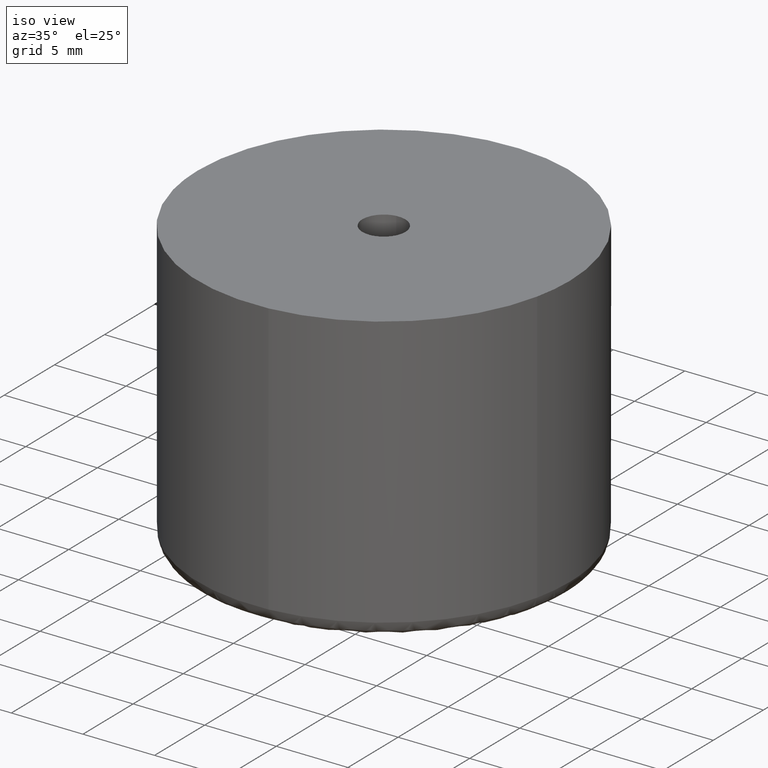
[diagram: clean part render]
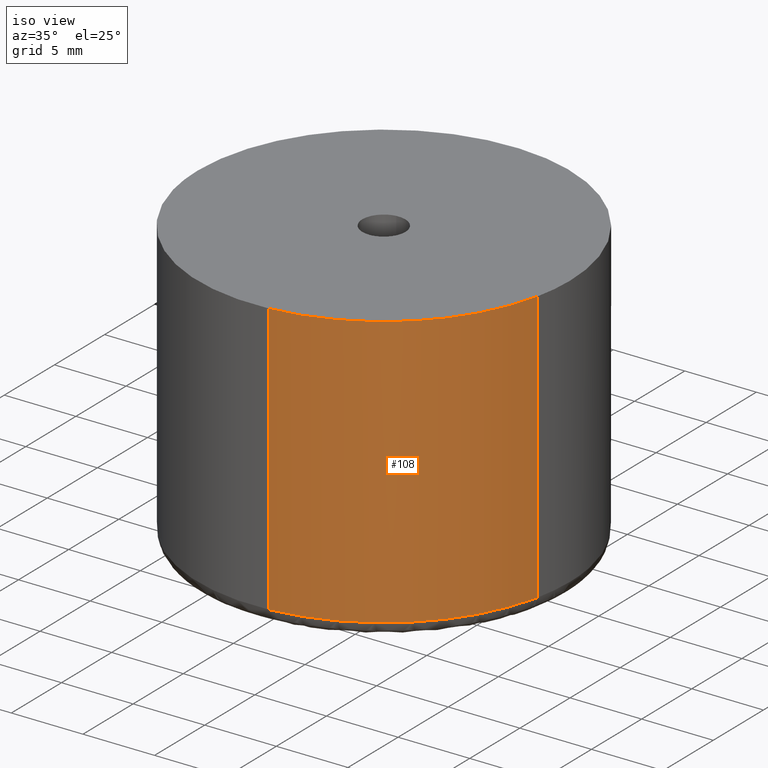
[diagram: same view with one face highlighted and labeled with its STEP entity id]
A machine part, iso view. The second image highlights one B-rep face of the part: STEP entity #108.
In plain terms, the highlighted face is a freeform B-spline surface patch.
Its self-contained STEP definition (entity closure, byte-faithful):
#44=CARTESIAN_POINT('',(12.705251811717318,-2.753750501336992,20.475000000003593));
#45=CARTESIAN_POINT('',(12.696430323743089,-2.793259911915609,20.475000000003597));
#46=CARTESIAN_POINT('',(10.594710865327652,-12.206376751862107,20.475000000003604));
#47=CARTESIAN_POINT('',(0.983351133643640,-12.962807167651045,20.475000000003600));
#48=CARTESIAN_POINT('',(0.946819630360228,-12.965682259312320,20.475000000003593));
#49=CARTESIAN_POINT('',(12.705251811717318,-2.753750501336992,0.513124999852447));
#50=CARTESIAN_POINT('',(12.696430323743089,-2.793259911915609,0.513124999852447));
#51=CARTESIAN_POINT('',(10.594710865327652,-12.206376751862107,0.513124999852447));
#52=CARTESIAN_POINT('',(0.983351133643640,-12.962807167651045,0.513124999852447));
#53=CARTESIAN_POINT('',(0.946819630360228,-12.965682259312320,0.513124999852447));
#61=(BOUNDED_SURFACE()B_SPLINE_SURFACE(2,1,((#44,#49),(#45,#50),(#46,#51),(#47,#52),(#48,#53)),.UNSPECIFIED.,.F.,.F.,.U.)B_SPLINE_SURFACE_WITH_KNOTS((3,1,1,3),(2,2),(0.0,0.085578205599617,17.199411616126010,17.284989678366841),(0.0,19.961875000151149),.UNSPECIFIED.)GEOMETRIC_REPRESENTATION_ITEM()RATIONAL_B_SPLINE_SURFACE(((0.907680205931852,0.907680205931852),(0.906977187955774,0.906977187955774),(0.765685424949238,0.765685424949238),(1.001171694663996,1.001171694663996),(1.002343389327992,1.002343389327992)))REPRESENTATION_ITEM('')SURFACE());
#62=CARTESIAN_POINT('',(12.687596999485550,-2.832822334452530,1.000000000000004));
#63=VERTEX_POINT('',#62);
#64=CARTESIAN_POINT('',(1.019960697844671,-12.959925932457899,1.000000000000026));
#65=VERTEX_POINT('',#64);
#66=CARTESIAN_POINT('',(12.687596999485553,-2.832822334452531,1.000000000000004));
#67=CARTESIAN_POINT('',(10.594716131196428,-12.206381947379535,1.000000000000014));
#68=CARTESIAN_POINT('',(1.019960697844671,-12.959925932457905,1.000000000000026));
#76=(BOUNDED_CURVE()B_SPLINE_CURVE(2,(#66,#67,#68),.UNSPECIFIED.,.F.,.U.)B_SPLINE_CURVE_WITH_KNOTS((3,3),(0.537286560370751,0.736331400453952),.UNSPECIFIED.)CURVE()GEOMETRIC_REPRESENTATION_ITEM()RATIONAL_B_SPLINE_CURVE((0.925662740296602,0.762027680026814,0.969723564491107))REPRESENTATION_ITEM(''));
#77=EDGE_CURVE('',#63,#65,#76,.T.);
#78=ORIENTED_EDGE('',*,*,#77,.F.);
#79=CARTESIAN_POINT('',(12.687596976655650,-2.832822436703005,20.0));
#80=VERTEX_POINT('',#79);
#81=CARTESIAN_POINT('',(12.687596976655650,-2.832822436703005,20.0));
#82=CARTESIAN_POINT('',(12.687596999485550,-2.832822334452530,1.000000000000004));
#83=QUASI_UNIFORM_CURVE('',1,(#81,#82),.UNSPECIFIED.,.F.,.U.);
#84=EDGE_CURVE('',#80,#63,#83,.T.);
#85=ORIENTED_EDGE('',*,*,#84,.F.);
#86=CARTESIAN_POINT('',(1.019960790914386,-12.959925925133270,20.0));
#87=VERTEX_POINT('',#86);
#88=CARTESIAN_POINT('',(12.687596976655650,-2.832822436703005,19.999999999999996));
#89=CARTESIAN_POINT('',(10.594716066193335,-12.206381883309835,20.000000000000004));
#90=CARTESIAN_POINT('',(1.019960790914386,-12.959925925133268,20.000000000000004));
#98=(BOUNDED_CURVE()B_SPLINE_CURVE(2,(#88,#89,#90),.UNSPECIFIED.,.F.,.U.)B_SPLINE_CURVE_WITH_KNOTS((3,3),(0.537286561689504,0.736331399222893),.UNSPECIFIED.)CURVE()GEOMETRIC_REPRESENTATION_ITEM()RATIONAL_B_SPLINE_CURVE((0.925662738128303,0.762027682414940,0.969723561921979))REPRESENTATION_ITEM(''));
#99=EDGE_CURVE('',#80,#87,#98,.T.);
#100=ORIENTED_EDGE('',*,*,#99,.T.);
#101=CARTESIAN_POINT('',(1.019960790914386,-12.959925925133270,20.0));
#102=CARTESIAN_POINT('',(1.019960697844671,-12.959925932457899,1.000000000000026));
#103=QUASI_UNIFORM_CURVE('',1,(#101,#102),.UNSPECIFIED.,.F.,.U.);
#104=EDGE_CURVE('',#87,#65,#103,.T.);
#105=ORIENTED_EDGE('',*,*,#104,.T.);
#106=EDGE_LOOP('',(#78,#85,#100,#105));
#107=FACE_OUTER_BOUND('',#106,.T.);
#108=ADVANCED_FACE('',(#107),#61,.T.);